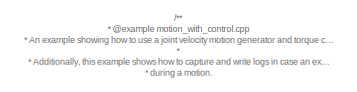
[diagram: root canvas - part 1/3, top center region]
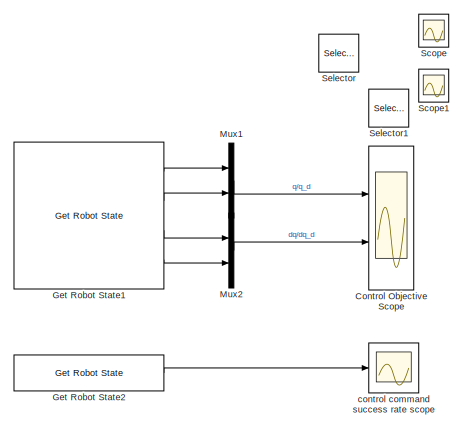
[diagram: root canvas - part 2/3, middle right region]
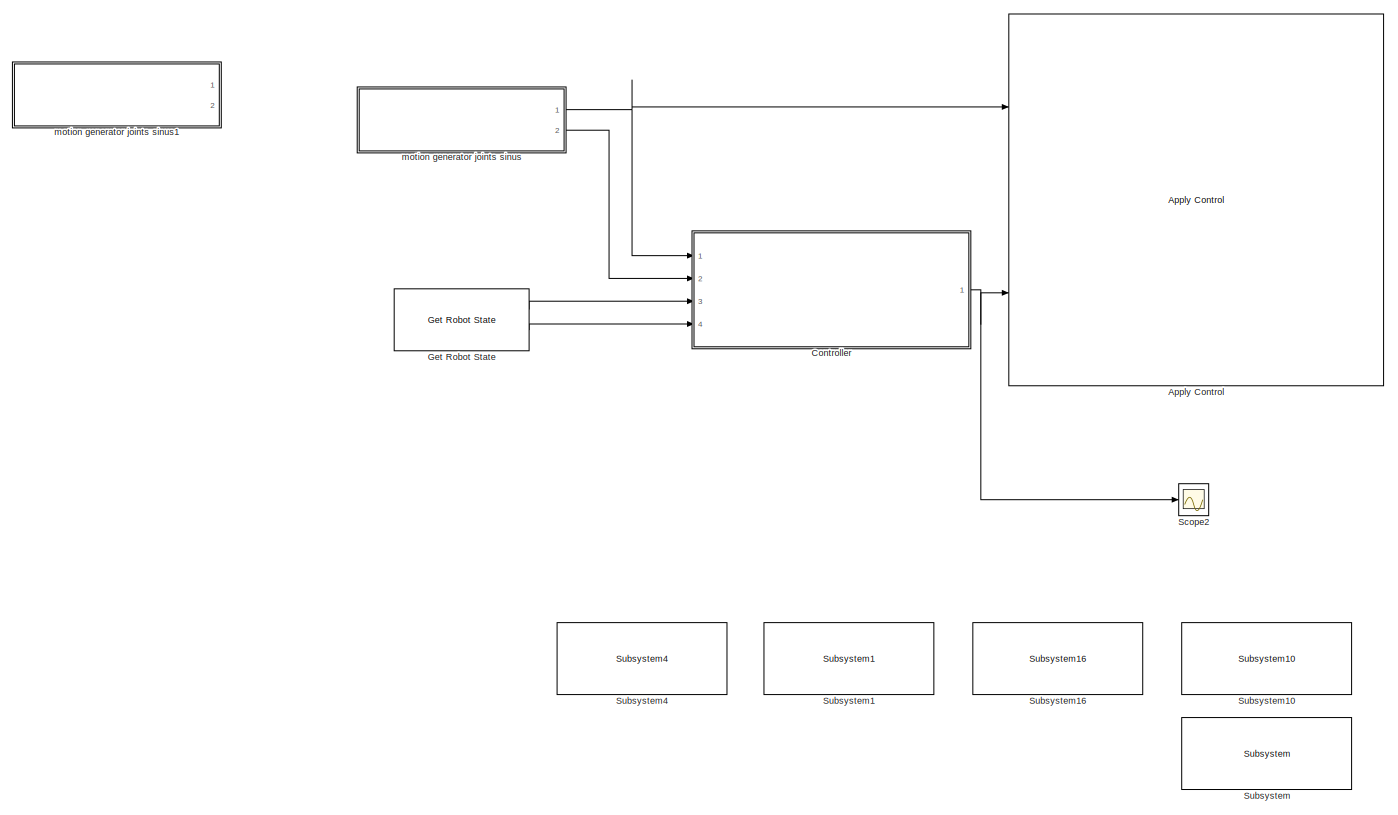
[diagram: root canvas - part 3/3, full width, bottom band]
MODEL slx_6d1928034ea1
KIND model
CONFIG AbsTol = auto
CONFIG EnableMultiTasking = on
CONFIG FixedStep = 0.001
CONFIG MaxStep = auto
CONFIG MinStep = auto
CONFIG PreLoadFcn = demos_common_configs();
CONFIG RelTol = 1e-3
CONFIG SampleTimeConstraint = Unconstrained
CONFIG SolverName = FixedStepDiscrete
CONFIG StartTime = 0.0
CONFIG StopTime = inf
BLOCK [Reference] Apply Control  REF=franka_simulink_library/Apply Control
  Ports = [3]
  SourceBlock = franka_simulink_library/Apply Control
  SourceProductName = Franka Emika
  UserDataPersistent = on
BLOCK [Scope] Control Objective Scope
  Floating = off
  NumInputPorts = 2
  Ports = [2]
  ScopeSpecificationString = Simulink.scopes.TimeScopeBlockCfg('CurrentConfiguration', extmgr.ConfigurationSet(extmgr.Configuration('Core','General UI',true),extmgr.Configuration('Core','Source UI',true),extmgr.Configuration('Sources','WiredSimulink',true,'DataLoggingVariableName','ScopeData1','DataLoggingSaveFormat','StructureWithTime','DataLoggingDecimation','1','DataLoggingDecimateData',true),extmgr.Configuration('Visuals'...<+2679ch>
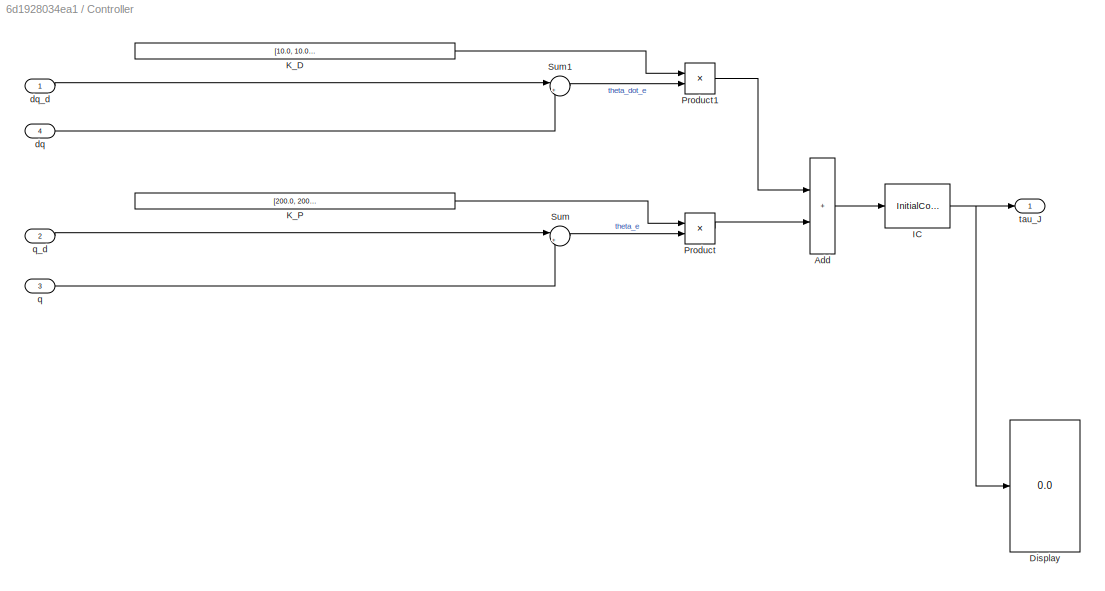
BLOCK [SubSystem] Controller
  Ports = [4, 1]
  RequestExecContextInheritance = off
BLOCK [Sum] Controller/Add
  IconShape = rectangular
  Ports = [2, 1]
BLOCK [Display] Controller/Display
  Decimation = 1
  Ports = [1]
BLOCK [InitialCondition] Controller/IC
  Value = zeros(1,7)
BLOCK [Constant] Controller/K_D
  SampleTime = -1
  Value = [10.0, 10.0, 10.0, 10.0, 10.0, 10.0, 10.0]
  VectorParams1D = off
BLOCK [Constant] Controller/K_P
  SampleTime = -1
  Value = [200.0, 200.0, 200.0, 200.0, 200.0, 200.0, 200.0]
  VectorParams1D = off
BLOCK [Product] Controller/Product
  Ports = [2, 1]
BLOCK [Product] Controller/Product1
  Ports = [2, 1]
BLOCK [Sum] Controller/Sum
  Inputs = |+-
  Ports = [2, 1]
BLOCK [Sum] Controller/Sum1
  Inputs = |+-
  Ports = [2, 1]
BLOCK [Inport] Controller/dq
  Port = 4
BLOCK [Inport] Controller/dq_d
BLOCK [Inport] Controller/q
  Port = 3
BLOCK [Inport] Controller/q_d
  Port = 2
BLOCK [Outport] Controller/tau_J
  VectorParamsAs1DForOutWhenUnconnected = off
BLOCK [Reference] Get Robot State  REF=franka_simulink_library/Get Robot State
  Ports = [0, 2]
  SourceBlock = franka_simulink_library/Get Robot State
  SourceProductName = Franka Emika
BLOCK [Reference] Get Robot State1  REF=franka_simulink_library/Get Robot State
  Ports = [0, 4]
  SourceBlock = franka_simulink_library/Get Robot State
  SourceProductName = Franka Emika
BLOCK [Reference] Get Robot State2  REF=franka_simulink_library/Get Robot State
  Ports = [0, 1]
  SourceBlock = franka_simulink_library/Get Robot State
  SourceProductName = Franka Emika
BLOCK [Mux] Mux1
  DisplayOption = bar
  Inputs = 2
  Ports = [2, 1]
BLOCK [Mux] Mux2
  DisplayOption = bar
  Inputs = 2
  Ports = [2, 1]
BLOCK [Scope] Scope
  Commented = on
  Floating = off
  NumInputPorts = 2
  Ports = [2]
  ScopeSpecificationString = Simulink.scopes.TimeScopeBlockCfg('CurrentConfiguration', extmgr.ConfigurationSet(extmgr.Configuration('Core','General UI',true),extmgr.Configuration('Core','Source UI',true),extmgr.Configuration('Sources','WiredSimulink',true,'DataLoggingVariableName','ScopeData6'),extmgr.Configuration('Visuals','Time Domain',true,'SerializedDisplays',{struct('MinYLimReal','-0.44895','MaxYLimReal','0.35633','YLab...<+1722ch>
BLOCK [Scope] Scope1
  Commented = on
  Floating = off
  NumInputPorts = 2
  Ports = [2]
  ScopeSpecificationString = Simulink.scopes.TimeScopeBlockCfg('CurrentConfiguration', extmgr.ConfigurationSet(extmgr.Configuration('Core','General UI',true),extmgr.Configuration('Core','Source UI',true),extmgr.Configuration('Sources','WiredSimulink',true,'DataLoggingVariableName','ScopeData7'),extmgr.Configuration('Visuals','Time Domain',true,'SerializedDisplays',{struct('MinYLimReal','-2.88939','MaxYLimReal','2.06637','YLab...<+1723ch>
BLOCK [Scope] Scope2
  Floating = off
  NumInputPorts = 1
  Ports = [1]
  ScopeSpecificationString = Simulink.scopes.TimeScopeBlockCfg('CurrentConfiguration', extmgr.ConfigurationSet(extmgr.Configuration('Core','General UI',true),extmgr.Configuration('Core','Source UI',true),extmgr.Configuration('Sources','WiredSimulink',true,'DataLoggingVariableName','ScopeData1'),extmgr.Configuration('Visuals','Time Domain',true,'SerializedDisplays',{struct('MinYLimReal','-2.7661','MaxYLimReal','3.91745','YLabe...<+1485ch>
BLOCK [Selector] Selector
  Commented = on
  IndexOptions = Index vector (dialog)
  Indices = [4]
  InputPortWidth = 14
  OutputSizes = 1
  Ports = [1, 1]
BLOCK [Selector] Selector1
  Commented = on
  IndexOptions = Index vector (dialog)
  Indices = [4]
  InputPortWidth = 14
  OutputSizes = 1
  Ports = [1, 1]
BLOCK [Reference] Subsystem  REF=franka_simulink_library_misc/Subsystem
  Ports = []
  SourceBlock = franka_simulink_library_misc/Subsystem
BLOCK [Reference] Subsystem1  REF=franka_simulink_library_misc/Subsystem1
  Ports = []
  SourceBlock = franka_simulink_library_misc/Subsystem1
BLOCK [Reference] Subsystem10  REF=franka_simulink_library_misc/Subsystem10
  Ports = []
  SourceBlock = franka_simulink_library_misc/Subsystem10
BLOCK [Reference] Subsystem16  REF=franka_simulink_library_misc/Subsystem16
  Ports = []
  SourceBlock = franka_simulink_library_misc/Subsystem16
BLOCK [Reference] Subsystem4  REF=franka_simulink_library_misc/Subsystem4
  Ports = []
  SourceBlock = franka_simulink_library_misc/Subsystem4
BLOCK [Scope] control command success rate scope
  Floating = off
  NumInputPorts = 1
  Ports = [1]
  ScopeSpecificationString = Simulink.scopes.TimeScopeBlockCfg('CurrentConfiguration', extmgr.ConfigurationSet(extmgr.Configuration('Core','General UI',true),extmgr.Configuration('Core','Source UI',true),extmgr.Configuration('Sources','WiredSimulink',true,'DataLoggingVariableName','ScopeData1','DataLoggingSaveFormat','StructureWithTime','DataLoggingDecimation','1','DataLoggingDecimateData',true),extmgr.Configuration('Visuals'...<+1737ch>
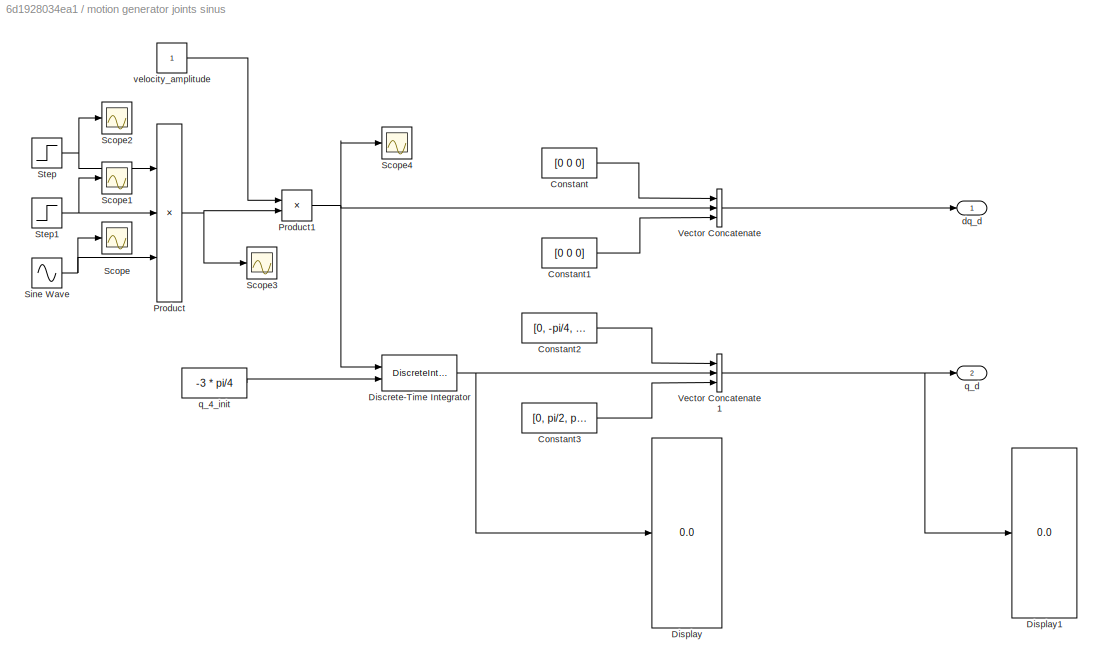
BLOCK [SubSystem] motion generator joints sinus
  Ports = [0, 2]
  RequestExecContextInheritance = off
BLOCK [Constant] motion generator joints sinus/Constant
  Value = [0 0 0]
  VectorParams1D = off
BLOCK [Constant] motion generator joints sinus/Constant1
  Value = [0 0 0]
  VectorParams1D = off
BLOCK [Constant] motion generator joints sinus/Constant2
  Value = [0, -pi/4, 0]
  VectorParams1D = off
BLOCK [Constant] motion generator joints sinus/Constant3
  Value = [0, pi/2, pi/4]
  VectorParams1D = off
BLOCK [DiscreteIntegrator] motion generator joints sinus/Discrete-Time Integrator
  ICPrevOutput = DiscIntNeverNeededParam
  ICPrevScaledInput = DiscIntNeverNeededParam
  InitialConditionSource = external
  Ports = [2, 1]
  SampleTime = 0.001
BLOCK [Display] motion generator joints sinus/Display
  Decimation = 1
  Ports = [1]
BLOCK [Display] motion generator joints sinus/Display1
  Decimation = 1
  Ports = [1]
BLOCK [Product] motion generator joints sinus/Product
  Inputs = 3
  Ports = [3, 1]
BLOCK [Product] motion generator joints sinus/Product1
  Ports = [2, 1]
BLOCK [Scope] motion generator joints sinus/Scope
  Floating = off
  NumInputPorts = 1
  Ports = [1]
  ScopeSpecificationString = Simulink.scopes.TimeScopeBlockCfg('CurrentConfiguration', extmgr.ConfigurationSet(extmgr.Configuration('Core','General UI',true),extmgr.Configuration('Core','Source UI',true),extmgr.Configuration('Sources','WiredSimulink',true,'DataLoggingVariableName','ScopeData1'),extmgr.Configuration('Visuals','Time Domain',true),extmgr.Configuration('Tools','Plot Navigation',true),extmgr.Configuration('Tools',...<+40ch>
BLOCK [Scope] motion generator joints sinus/Scope1
  Floating = off
  NumInputPorts = 1
  Ports = [1]
  ScopeSpecificationString = Simulink.scopes.TimeScopeBlockCfg('CurrentConfiguration', extmgr.ConfigurationSet(extmgr.Configuration('Core','General UI',true),extmgr.Configuration('Core','Source UI',true),extmgr.Configuration('Sources','WiredSimulink',true,'DataLoggingVariableName','ScopeData2'),extmgr.Configuration('Visuals','Time Domain',true),extmgr.Configuration('Tools','Plot Navigation',true),extmgr.Configuration('Tools',...<+40ch>
BLOCK [Scope] motion generator joints sinus/Scope2
  Floating = off
  NumInputPorts = 1
  Ports = [1]
  ScopeSpecificationString = Simulink.scopes.TimeScopeBlockCfg('CurrentConfiguration', extmgr.ConfigurationSet(extmgr.Configuration('Core','General UI',true),extmgr.Configuration('Core','Source UI',true),extmgr.Configuration('Sources','WiredSimulink',true,'DataLoggingVariableName','ScopeData3'),extmgr.Configuration('Visuals','Time Domain',true),extmgr.Configuration('Tools','Plot Navigation',true),extmgr.Configuration('Tools',...<+40ch>
BLOCK [Scope] motion generator joints sinus/Scope3
  Floating = off
  NumInputPorts = 1
  Ports = [1]
  ScopeSpecificationString = Simulink.scopes.TimeScopeBlockCfg('CurrentConfiguration', extmgr.ConfigurationSet(extmgr.Configuration('Core','General UI',true),extmgr.Configuration('Core','Source UI',true),extmgr.Configuration('Sources','WiredSimulink',true,'DataLoggingVariableName','ScopeData4'),extmgr.Configuration('Visuals','Time Domain',true),extmgr.Configuration('Tools','Plot Navigation',true),extmgr.Configuration('Tools',...<+40ch>
BLOCK [Scope] motion generator joints sinus/Scope4
  Floating = off
  NumInputPorts = 1
  Ports = [1]
  ScopeSpecificationString = Simulink.scopes.TimeScopeBlockCfg('CurrentConfiguration', extmgr.ConfigurationSet(extmgr.Configuration('Core','General UI',true),extmgr.Configuration('Core','Source UI',true),extmgr.Configuration('Sources','WiredSimulink',true,'DataLoggingVariableName','ScopeData5'),extmgr.Configuration('Visuals','Time Domain',true,'SerializedDisplays',{struct('MinYLimReal','-1.00000','MaxYLimReal','1.00000','YLab...<+1367ch>
BLOCK [Sin] motion generator joints sinus/Sine Wave
  Frequency = pi
  Phase = pi
  Ports = [0, 1]
  SampleTime = 0
BLOCK [Step] motion generator joints sinus/Step
  SampleTime = 0
BLOCK [Step] motion generator joints sinus/Step1
  After = 0
  Before = 1
  SampleTime = 0
  Time = 70
BLOCK [Concatenate] motion generator joints sinus/Vector Concatenate
  NumInputs = 3
  Ports = [3, 1]
BLOCK [Concatenate] motion generator joints sinus/Vector Concatenate1
  NumInputs = 3
  Ports = [3, 1]
BLOCK [Outport] motion generator joints sinus/dq_d
  VectorParamsAs1DForOutWhenUnconnected = off
BLOCK [Constant] motion generator joints sinus/q_4_init
  Value = -3 * pi/4
  VectorParams1D = off
BLOCK [Outport] motion generator joints sinus/q_d
  Port = 2
  VectorParamsAs1DForOutWhenUnconnected = off
BLOCK [Constant] motion generator joints sinus/velocity_amplitude
  VectorParams1D = off
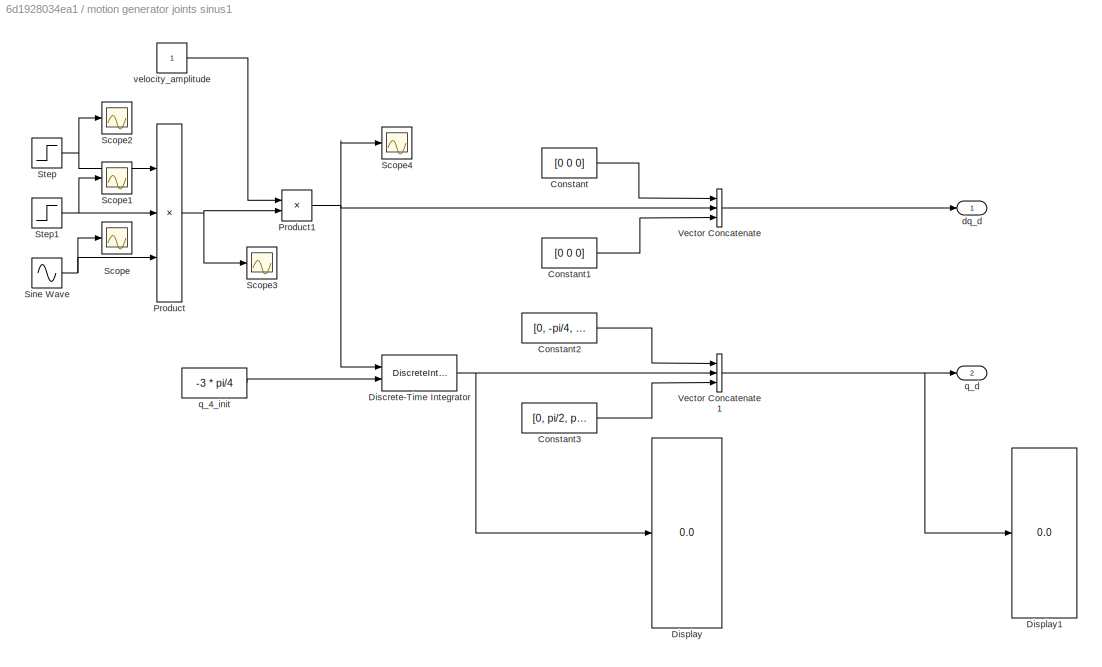
BLOCK [SubSystem] motion generator joints sinus1
  Commented = on
  Ports = [0, 2]
  RequestExecContextInheritance = off
BLOCK [Constant] motion generator joints sinus1/Constant
  Value = [0 0 0]
  VectorParams1D = off
BLOCK [Constant] motion generator joints sinus1/Constant1
  Value = [0 0 0]
  VectorParams1D = off
BLOCK [Constant] motion generator joints sinus1/Constant2
  Value = [0, -pi/4, 0]
  VectorParams1D = off
BLOCK [Constant] motion generator joints sinus1/Constant3
  Value = [0, pi/2, pi/4]
  VectorParams1D = off
BLOCK [DiscreteIntegrator] motion generator joints sinus1/Discrete-Time Integrator
  ICPrevOutput = DiscIntNeverNeededParam
  ICPrevScaledInput = DiscIntNeverNeededParam
  InitialConditionSource = external
  Ports = [2, 1]
  SampleTime = 0.001
BLOCK [Display] motion generator joints sinus1/Display
  Decimation = 1
  Ports = [1]
BLOCK [Display] motion generator joints sinus1/Display1
  Decimation = 1
  Ports = [1]
BLOCK [Product] motion generator joints sinus1/Product
  Inputs = 3
  Ports = [3, 1]
BLOCK [Product] motion generator joints sinus1/Product1
  Ports = [2, 1]
BLOCK [Scope] motion generator joints sinus1/Scope
  Floating = off
  NumInputPorts = 1
  Ports = [1]
  ScopeSpecificationString = Simulink.scopes.TimeScopeBlockCfg('CurrentConfiguration', extmgr.ConfigurationSet(extmgr.Configuration('Core','General UI',true),extmgr.Configuration('Core','Source UI',true),extmgr.Configuration('Sources','WiredSimulink',true,'DataLoggingVariableName','ScopeData1'),extmgr.Configuration('Visuals','Time Domain',true),extmgr.Configuration('Tools','Plot Navigation',true),extmgr.Configuration('Tools',...<+40ch>
BLOCK [Scope] motion generator joints sinus1/Scope1
  Floating = off
  NumInputPorts = 1
  Ports = [1]
  ScopeSpecificationString = Simulink.scopes.TimeScopeBlockCfg('CurrentConfiguration', extmgr.ConfigurationSet(extmgr.Configuration('Core','General UI',true),extmgr.Configuration('Core','Source UI',true),extmgr.Configuration('Sources','WiredSimulink',true,'DataLoggingVariableName','ScopeData2'),extmgr.Configuration('Visuals','Time Domain',true),extmgr.Configuration('Tools','Plot Navigation',true),extmgr.Configuration('Tools',...<+40ch>
BLOCK [Scope] motion generator joints sinus1/Scope2
  Floating = off
  NumInputPorts = 1
  Ports = [1]
  ScopeSpecificationString = Simulink.scopes.TimeScopeBlockCfg('CurrentConfiguration', extmgr.ConfigurationSet(extmgr.Configuration('Core','General UI',true),extmgr.Configuration('Core','Source UI',true),extmgr.Configuration('Sources','WiredSimulink',true,'DataLoggingVariableName','ScopeData3'),extmgr.Configuration('Visuals','Time Domain',true),extmgr.Configuration('Tools','Plot Navigation',true),extmgr.Configuration('Tools',...<+40ch>
BLOCK [Scope] motion generator joints sinus1/Scope3
  Floating = off
  NumInputPorts = 1
  Ports = [1]
  ScopeSpecificationString = Simulink.scopes.TimeScopeBlockCfg('CurrentConfiguration', extmgr.ConfigurationSet(extmgr.Configuration('Core','General UI',true),extmgr.Configuration('Core','Source UI',true),extmgr.Configuration('Sources','WiredSimulink',true,'DataLoggingVariableName','ScopeData4'),extmgr.Configuration('Visuals','Time Domain',true),extmgr.Configuration('Tools','Plot Navigation',true),extmgr.Configuration('Tools',...<+40ch>
BLOCK [Scope] motion generator joints sinus1/Scope4
  Floating = off
  NumInputPorts = 1
  Ports = [1]
  ScopeSpecificationString = Simulink.scopes.TimeScopeBlockCfg('CurrentConfiguration', extmgr.ConfigurationSet(extmgr.Configuration('Core','General UI',true),extmgr.Configuration('Core','Source UI',true),extmgr.Configuration('Sources','WiredSimulink',true,'DataLoggingVariableName','ScopeData5'),extmgr.Configuration('Visuals','Time Domain',true,'SerializedDisplays',{struct('MinYLimReal','-1.00000','MaxYLimReal','1.00000','YLab...<+1367ch>
BLOCK [Sin] motion generator joints sinus1/Sine Wave
  Frequency = pi
  Phase = pi
  Ports = [0, 1]
  SampleTime = 0
BLOCK [Step] motion generator joints sinus1/Step
  SampleTime = 0
BLOCK [Step] motion generator joints sinus1/Step1
  After = 0
  Before = 1
  SampleTime = 0
  Time = 70
BLOCK [Concatenate] motion generator joints sinus1/Vector Concatenate
  NumInputs = 3
  Ports = [3, 1]
BLOCK [Concatenate] motion generator joints sinus1/Vector Concatenate1
  NumInputs = 3
  Ports = [3, 1]
BLOCK [Outport] motion generator joints sinus1/dq_d
  VectorParamsAs1DForOutWhenUnconnected = off
BLOCK [Constant] motion generator joints sinus1/q_4_init
  Value = -3 * pi/4
  VectorParams1D = off
BLOCK [Outport] motion generator joints sinus1/q_d
  Port = 2
  VectorParamsAs1DForOutWhenUnconnected = off
BLOCK [Constant] motion generator joints sinus1/velocity_amplitude
  VectorParams1D = off
ANNOTATION (root): /** * @example motion_with_control.cpp * An example showing how to use a joint velocity motion generator and torque control. * * Additionally, this example shows how to capture and write logs in case an exception is thrown * during a motion. * * @warning Before executing this example, make sure there is enough space in front of the robot. */
LINE Controller/Add:1 -> Controller/IC:1
NET Controller/IC:1 -> Controller/Display:1, Controller/tau_J:1
LINE Controller/K_D:1 -> Controller/Product1:1
LINE Controller/K_P:1 -> Controller/Product:1
LINE Controller/Product1:1 -> Controller/Add:1
LINE Controller/Product:1 -> Controller/Add:2
LINE Controller/Sum1:1 -> Controller/Product1:2
LINE Controller/Sum:1 -> Controller/Product:2
LINE Controller/dq:1 -> Controller/Sum1:2
LINE Controller/dq_d:1 -> Controller/Sum1:1
LINE Controller/q:1 -> Controller/Sum:2
LINE Controller/q_d:1 -> Controller/Sum:1
NET Controller:1 -> Apply Control:3, Scope2:1
LINE Get Robot State1:1 -> Mux1:1
LINE Get Robot State1:2 -> Mux1:2
LINE Get Robot State1:3 -> Mux2:1
LINE Get Robot State1:4 -> Mux2:2
LINE Get Robot State2:1 -> control command success rate scope:1
LINE Get Robot State:1 -> Controller:3
LINE Get Robot State:2 -> Controller:4
LINE Mux1:1 -> Control Objective Scope:1
LINE Mux2:1 -> Control Objective Scope:2
LINE motion generator joints sinus/Constant1:1 -> motion generator joints sinus/Vector Concatenate:3
LINE motion generator joints sinus/Constant2:1 -> motion generator joints sinus/Vector Concatenate1:1
LINE motion generator joints sinus/Constant3:1 -> motion generator joints sinus/Vector Concatenate1:3
LINE motion generator joints sinus/Constant:1 -> motion generator joints sinus/Vector Concatenate:1
NET motion generator joints sinus/Discrete-Time Integrator:1 -> motion generator joints sinus/Display:1, motion generator joints sinus/Vector Concatenate1:2
NET motion generator joints sinus/Product1:1 -> motion generator joints sinus/Discrete-Time Integrator:1, motion generator joints sinus/Scope4:1, motion generator joints sinus/Vector Concatenate:2
NET motion generator joints sinus/Product:1 -> motion generator joints sinus/Product1:2, motion generator joints sinus/Scope3:1
NET motion generator joints sinus/Sine Wave:1 -> motion generator joints sinus/Product:3, motion generator joints sinus/Scope:1
NET motion generator joints sinus/Step1:1 -> motion generator joints sinus/Product:2, motion generator joints sinus/Scope1:1
NET motion generator joints sinus/Step:1 -> motion generator joints sinus/Product:1, motion generator joints sinus/Scope2:1
NET motion generator joints sinus/Vector Concatenate1:1 -> motion generator joints sinus/Display1:1, motion generator joints sinus/q_d:1
LINE motion generator joints sinus/Vector Concatenate:1 -> motion generator joints sinus/dq_d:1
LINE motion generator joints sinus/q_4_init:1 -> motion generator joints sinus/Discrete-Time Integrator:2
LINE motion generator joints sinus/velocity_amplitude:1 -> motion generator joints sinus/Product1:1
LINE motion generator joints sinus1/Constant1:1 -> motion generator joints sinus1/Vector Concatenate:3
LINE motion generator joints sinus1/Constant2:1 -> motion generator joints sinus1/Vector Concatenate1:1
LINE motion generator joints sinus1/Constant3:1 -> motion generator joints sinus1/Vector Concatenate1:3
LINE motion generator joints sinus1/Constant:1 -> motion generator joints sinus1/Vector Concatenate:1
NET motion generator joints sinus1/Discrete-Time Integrator:1 -> motion generator joints sinus1/Display:1, motion generator joints sinus1/Vector Concatenate1:2
NET motion generator joints sinus1/Product1:1 -> motion generator joints sinus1/Discrete-Time Integrator:1, motion generator joints sinus1/Scope4:1, motion generator joints sinus1/Vector Concatenate:2
NET motion generator joints sinus1/Product:1 -> motion generator joints sinus1/Product1:2, motion generator joints sinus1/Scope3:1
NET motion generator joints sinus1/Sine Wave:1 -> motion generator joints sinus1/Product:3, motion generator joints sinus1/Scope:1
NET motion generator joints sinus1/Step1:1 -> motion generator joints sinus1/Product:2, motion generator joints sinus1/Scope1:1
NET motion generator joints sinus1/Step:1 -> motion generator joints sinus1/Product:1, motion generator joints sinus1/Scope2:1
NET motion generator joints sinus1/Vector Concatenate1:1 -> motion generator joints sinus1/Display1:1, motion generator joints sinus1/q_d:1
LINE motion generator joints sinus1/Vector Concatenate:1 -> motion generator joints sinus1/dq_d:1
LINE motion generator joints sinus1/q_4_init:1 -> motion generator joints sinus1/Discrete-Time Integrator:2
LINE motion generator joints sinus1/velocity_amplitude:1 -> motion generator joints sinus1/Product1:1
NET motion generator joints sinus:1 -> Apply Control:1, Controller:1
LINE motion generator joints sinus:2 -> Controller:2
note: NET lines group one-source signal fan-out (src -> all destinations, sorted); 1:1 wires keep LINE
